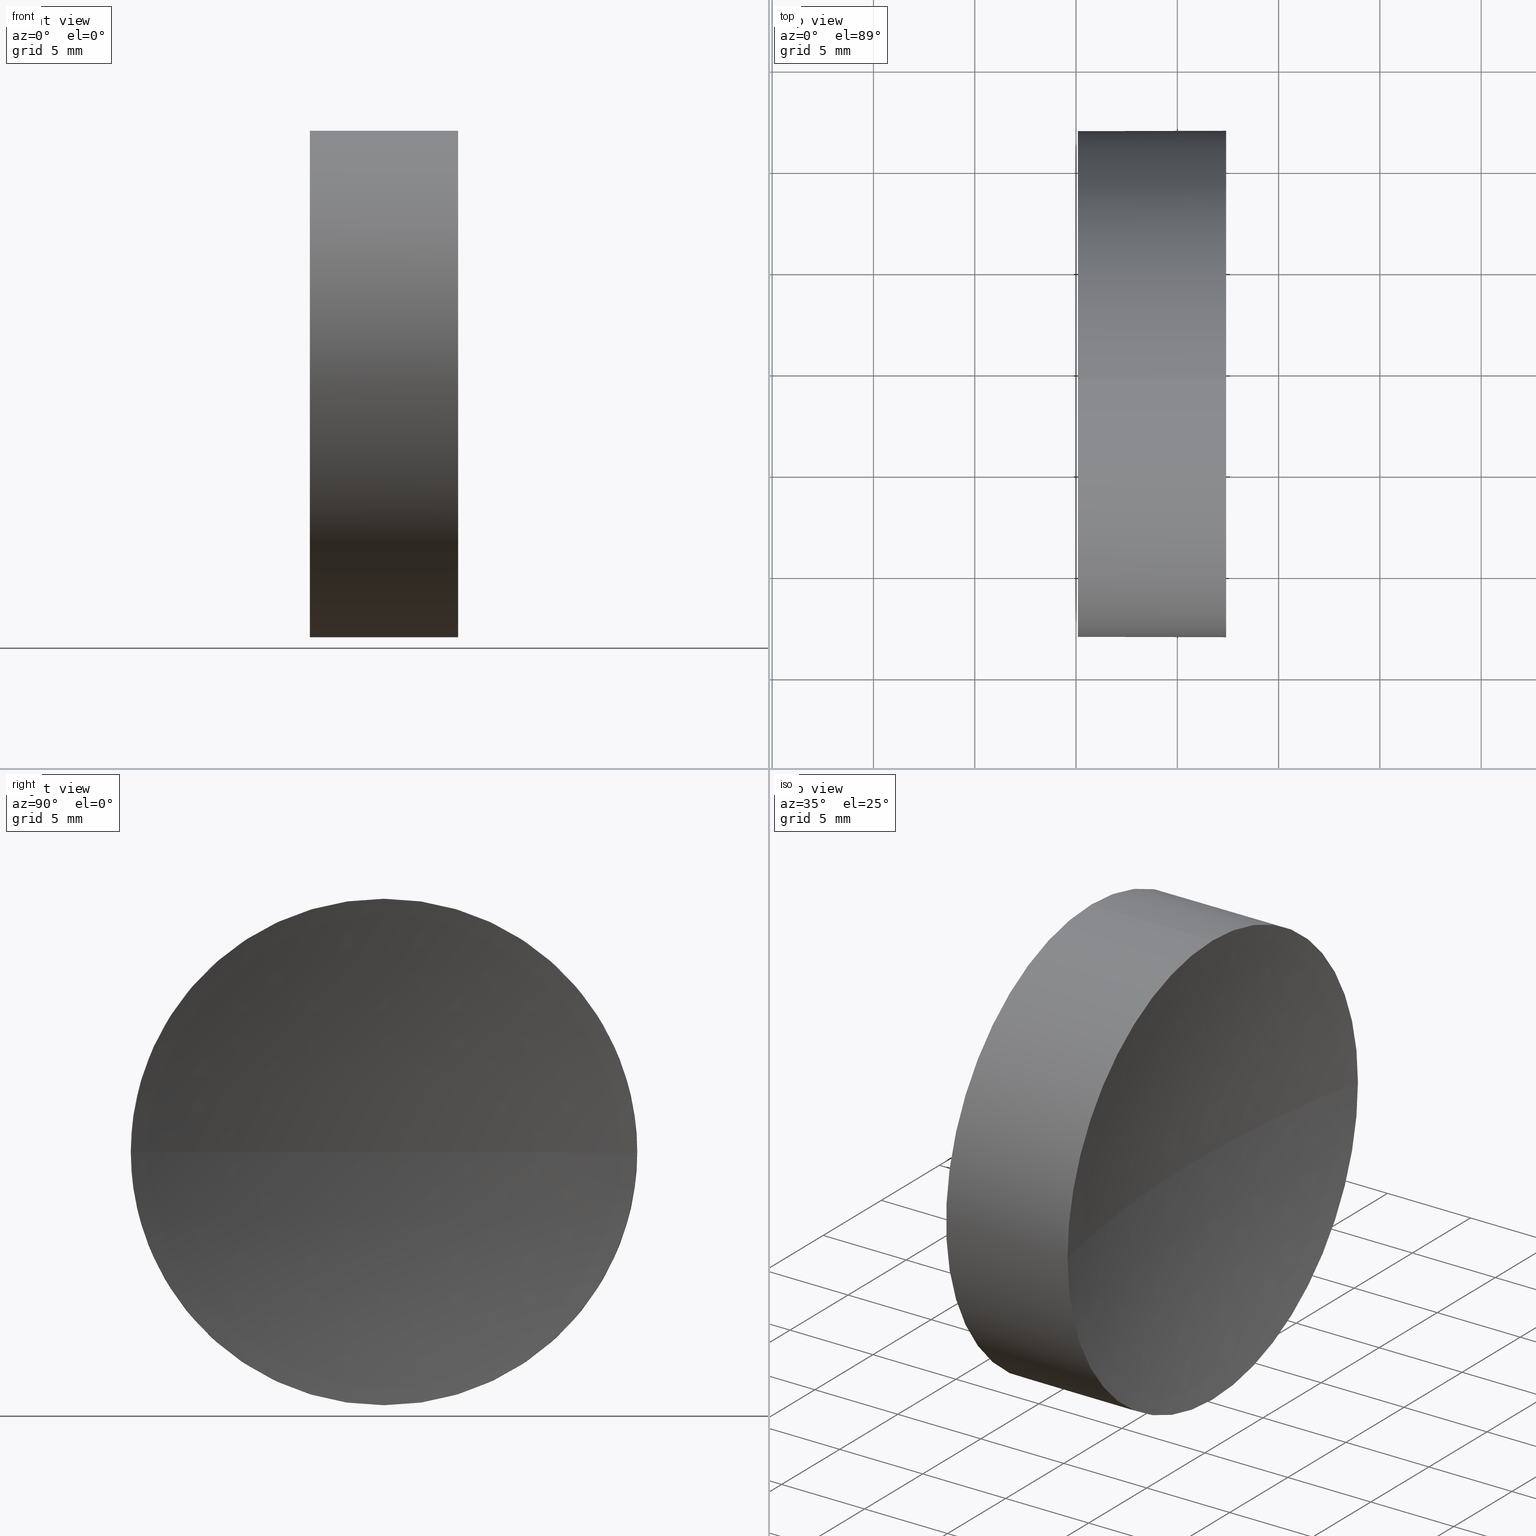
[diagram: canonical four-view strip — front | top / right | iso, engineering-drawing reading convention]
A machine part, canonical four-view strip (front | top / right | iso — engineering-drawing reading convention). The complete STEP part file that produces these views, byte-faithful:
ISO-10303-21;
HEADER;
FILE_DESCRIPTION (( 'STEP AP214' ),
    '1' );
FILE_NAME ('270022.STEP',
    '2019-07-22T06:14:19',
    ( '' ),
    ( '' ),
    'SwSTEP 2.0',
    'SolidWorks 2016',
    '' );
FILE_SCHEMA (( 'AUTOMOTIVE_DESIGN' ));
ENDSEC;

DATA;
#1 = DIRECTION ( 'NONE',  ( 0.0000000000000000000, 0.0000000000000000000, -1.000000000000000000 ) ) ;
#2 = DIRECTION ( 'NONE',  ( 1.000000000000000000, 0.0000000000000000000, 0.0000000000000000000 ) ) ;
#3 = CARTESIAN_POINT ( 'NONE',  ( 115.0926555349195200, 69.37802112337243400, 0.0000000000000000000 ) ) ;
#4 = MANIFOLD_SOLID_BREP ( '��ת1', #36 ) ;
#5 = DIRECTION ( 'NONE',  ( 0.0000000000000000000, 0.0000000000000000000, 1.000000000000000000 ) ) ;
#6 = ORIENTED_EDGE ( 'NONE', *, *, #143, .T. ) ;
#7 = FACE_OUTER_BOUND ( 'NONE', #111, .T. ) ;
#8 = UNCERTAINTY_MEASURE_WITH_UNIT (LENGTH_MEASURE( 1.000000000000000100E-005 ), #61, 'distance_accuracy_value', 'NONE');
#9 = ORIENTED_EDGE ( 'NONE', *, *, #133, .T. ) ;
#10 =( GEOMETRIC_REPRESENTATION_CONTEXT ( 3 ) GLOBAL_UNCERTAINTY_ASSIGNED_CONTEXT ( ( #8 ) ) GLOBAL_UNIT_ASSIGNED_CONTEXT ( ( #61, #78, #92 ) ) REPRESENTATION_CONTEXT ( 'NONE', 'WORKASPACE' ) );
#11 = PRODUCT_DEFINITION_SHAPE ( 'NONE', 'NONE',  #43 ) ;
#12 = ORIENTED_EDGE ( 'NONE', *, *, #133, .F. ) ;
#13 = DIRECTION ( 'NONE',  ( -1.000000000000000000, -0.0000000000000000000, -0.0000000000000000000 ) ) ;
#14 = CARTESIAN_POINT ( 'NONE',  ( 108.9851430021651000, 69.37802112337243400, 0.0000000000000000000 ) ) ;
#15 = APPLICATION_CONTEXT ( 'automotive_design' ) ;
#16 = CARTESIAN_POINT ( 'NONE',  ( 181.0926555496876300, 69.37802112337239200, 0.0000000000000000000 ) ) ;
#17 = ADVANCED_FACE ( 'NONE', ( #103 ), #94, .T. ) ;
#18 = DIRECTION ( 'NONE',  ( -1.000000000000000000, -0.0000000000000000000, -0.0000000000000000000 ) ) ;
#19 = DIRECTION ( 'NONE',  ( -1.000000000000000000, -0.0000000000000000000, -0.0000000000000000000 ) ) ;
#20 = DIRECTION ( 'NONE',  ( 1.000000000000000000, 0.0000000000000000000, 0.0000000000000000000 ) ) ;
#21 = CARTESIAN_POINT ( 'NONE',  ( 108.9851430021651000, 69.37802112337243400, 12.50000000000001800 ) ) ;
#22 = PRODUCT_RELATED_PRODUCT_CATEGORY ( 'part', '', ( #77 ) ) ;
#23 = CIRCLE ( 'NONE', #35, 12.50000000000003900 ) ;
#24 = VERTEX_POINT ( 'NONE', #185 ) ;
#25 = AXIS2_PLACEMENT_3D ( 'NONE', #175, #18, #33 ) ;
#26 = EDGE_CURVE ( 'NONE', #186, #146, #129, .T. ) ;
#27 = LINE ( 'NONE', #21, #181 ) ;
#28 =( NAMED_UNIT ( * ) SI_UNIT ( $, .STERADIAN. ) SOLID_ANGLE_UNIT ( ) );
#29 = EDGE_CURVE ( 'NONE', #179, #39, #60, .T. ) ;
#30 = FILL_AREA_STYLE_COLOUR ( '', #156 ) ;
#31 = VERTEX_POINT ( 'NONE', #58 ) ;
#32 = SHAPE_DEFINITION_REPRESENTATION ( #11, #136 ) ;
#33 = DIRECTION ( 'NONE',  ( 0.0000000000000000000, 0.0000000000000000000, 1.000000000000000000 ) ) ;
#34 = CARTESIAN_POINT ( 'NONE',  ( 122.4091825781601600, 69.37802112337243400, 0.0000000000000000000 ) ) ;
#35 = AXIS2_PLACEMENT_3D ( 'NONE', #63, #108, #165 ) ;
#36 = CLOSED_SHELL ( 'NONE', ( #17, #160, #72, #105, #134 ) ) ;
#37 = APPLICATION_CONTEXT ( 'automotive_design' ) ;
#38 = PRESENTATION_LAYER_ASSIGNMENT (  '', '', ( #117 ) ) ;
#39 = VERTEX_POINT ( 'NONE', #56 ) ;
#40 = STYLED_ITEM ( 'NONE', ( #47 ), #136 ) ;
#41 = SURFACE_STYLE_USAGE ( .BOTH. , #119 ) ;
#42 = DIRECTION ( 'NONE',  ( 0.0000000000000000000, 0.0000000000000000000, 1.000000000000000000 ) ) ;
#43 = PRODUCT_DEFINITION ( 'δ֪', '', #84, #97 ) ;
#44 = DIRECTION ( 'NONE',  ( 0.0000000000000000000, 0.0000000000000000000, 1.000000000000000000 ) ) ;
#45 = DIRECTION ( 'NONE',  ( 0.0000000000000000000, 1.000000000000000000, 0.0000000000000000000 ) ) ;
#46 = FILL_AREA_STYLE ('',( #182 ) ) ;
#47 = PRESENTATION_STYLE_ASSIGNMENT (( #162 ) ) ;
#48 =( LENGTH_UNIT ( ) NAMED_UNIT ( * ) SI_UNIT ( .MILLI., .METRE. ) );
#49 = ORIENTED_EDGE ( 'NONE', *, *, #149, .F. ) ;
#50 = VECTOR ( 'NONE', #67, 1000.000000000000000 ) ;
#51 = ORIENTED_EDGE ( 'NONE', *, *, #70, .T. ) ;
#52 = ORIENTED_EDGE ( 'NONE', *, *, #70, .F. ) ;
#53 = AXIS2_PLACEMENT_3D ( 'NONE', #144, #106, #102 ) ;
#54 = CIRCLE ( 'NONE', #25, 12.50000000000003900 ) ;
#55 = PRESENTATION_STYLE_ASSIGNMENT (( #41 ) ) ;
#56 = CARTESIAN_POINT ( 'NONE',  ( 122.4091825781601700, 81.87802112337246300, 0.0000000000000000000 ) ) ;
#57 = FILL_AREA_STYLE ('',( #30 ) ) ;
#58 = CARTESIAN_POINT ( 'NONE',  ( 121.0926555496876500, 69.37802112337239200, 0.0000000000000000000 ) ) ;
#59 = CARTESIAN_POINT ( 'NONE',  ( 181.0926555496876300, 69.37802112337239200, 0.0000000000000000000 ) ) ;
#60 = CIRCLE ( 'NONE', #176, 12.50000000000003900 ) ;
#61 =( LENGTH_UNIT ( ) NAMED_UNIT ( * ) SI_UNIT ( .MILLI., .METRE. ) );
#62 = CARTESIAN_POINT ( 'NONE',  ( 181.0926555496876300, 69.37802112337239200, 0.0000000000000000000 ) ) ;
#63 = CARTESIAN_POINT ( 'NONE',  ( 122.4091825781601600, 69.37802112337243400, 0.0000000000000000000 ) ) ;
#64 = DIRECTION ( 'NONE',  ( 0.0000000000000000000, 0.0000000000000000000, 1.000000000000000000 ) ) ;
#65 = AXIS2_PLACEMENT_3D ( 'NONE', #180, #150, #148 ) ;
#66 = ORIENTED_EDGE ( 'NONE', *, *, #172, .F. ) ;
#67 = DIRECTION ( 'NONE',  ( -1.000000000000000000, -0.0000000000000000000, -0.0000000000000000000 ) ) ;
#68 =( NAMED_UNIT ( * ) PLANE_ANGLE_UNIT ( ) SI_UNIT ( $, .RADIAN. ) );
#69 = ORIENTED_EDGE ( 'NONE', *, *, #157, .F. ) ;
#70 = EDGE_CURVE ( 'NONE', #39, #31, #183, .T. ) ;
#71 =( NAMED_UNIT ( * ) SI_UNIT ( $, .STERADIAN. ) SOLID_ANGLE_UNIT ( ) );
#72 = ADVANCED_FACE ( 'NONE', ( #7 ), #152, .F. ) ;
#73 = ORIENTED_EDGE ( 'NONE', *, *, #26, .T. ) ;
#74 = EDGE_LOOP ( 'NONE', ( #6, #96, #104, #142, #81 ) ) ;
#75 = SURFACE_SIDE_STYLE ('',( #124 ) ) ;
#76 = CARTESIAN_POINT ( 'NONE',  ( 115.0926555349195200, 69.37802112337243400, 0.0000000000000000000 ) ) ;
#77 = PRODUCT ( '270022', '270022', '', ( #138 ) ) ;
#78 =( NAMED_UNIT ( * ) PLANE_ANGLE_UNIT ( ) SI_UNIT ( $, .RADIAN. ) );
#79 = CARTESIAN_POINT ( 'NONE',  ( 122.4091825781601700, 56.87802112337237000, -1.530808498934194300E-015 ) ) ;
#80 = AXIS2_PLACEMENT_3D ( 'NONE', #62, #139, #2 ) ;
#81 = ORIENTED_EDGE ( 'NONE', *, *, #29, .T. ) ;
#82 = CARTESIAN_POINT ( 'NONE',  ( 115.0926555349195200, 69.37802112337243400, -12.49999999999999600 ) ) ;
#83 = ORIENTED_EDGE ( 'NONE', *, *, #26, .F. ) ;
#84 = PRODUCT_DEFINITION_FORMATION_WITH_SPECIFIED_SOURCE ( '�κ�', '', #77, .NOT_KNOWN. ) ;
#85 = VERTEX_POINT ( 'NONE', #79 ) ;
#86 = FACE_OUTER_BOUND ( 'NONE', #125, .T. ) ;
#87 =( LENGTH_UNIT ( ) NAMED_UNIT ( * ) SI_UNIT ( .MILLI., .METRE. ) );
#88 = CYLINDRICAL_SURFACE ( 'NONE', #127, 12.50000000000001800 ) ;
#89 = DIRECTION ( 'NONE',  ( 0.0000000000000000000, 0.0000000000000000000, 1.000000000000000000 ) ) ;
#90 = APPLICATION_PROTOCOL_DEFINITION ( 'draft international standard', 'automotive_design', 1998, #15 ) ;
#91 = DIRECTION ( 'NONE',  ( 0.0000000000000000000, 1.000000000000000000, 1.224646799147353500E-016 ) ) ;
#92 =( NAMED_UNIT ( * ) SI_UNIT ( $, .STERADIAN. ) SOLID_ANGLE_UNIT ( ) );
#93 = CARTESIAN_POINT ( 'NONE',  ( 108.9851430021651000, 69.37802112337243400, 0.0000000000000000000 ) ) ;
#94 = CYLINDRICAL_SURFACE ( 'NONE', #158, 12.50000000000001800 ) ;
#95 = DIRECTION ( 'NONE',  ( 0.0000000000000000000, 1.224646799147353200E-016, -1.000000000000000000 ) ) ;
#96 = ORIENTED_EDGE ( 'NONE', *, *, #172, .T. ) ;
#97 = PRODUCT_DEFINITION_CONTEXT ( 'detailed design', #37, 'design' ) ;
#98 = SURFACE_STYLE_FILL_AREA ( #57 ) ;
#99 = EDGE_CURVE ( 'NONE', #146, #186, #114, .T. ) ;
#100 = CIRCLE ( 'NONE', #169, 59.99999999999998600 ) ;
#101 = DIRECTION ( 'NONE',  ( 0.0000000000000000000, 0.0000000000000000000, 1.000000000000000000 ) ) ;
#102 = DIRECTION ( 'NONE',  ( 0.0000000000000000000, 0.0000000000000000000, 1.000000000000000000 ) ) ;
#103 = FACE_OUTER_BOUND ( 'NONE', #74, .T. ) ;
#104 = ORIENTED_EDGE ( 'NONE', *, *, #99, .F. ) ;
#105 = ADVANCED_FACE ( 'NONE', ( #140 ), #88, .T. ) ;
#106 = DIRECTION ( 'NONE',  ( -1.000000000000000000, -0.0000000000000000000, -0.0000000000000000000 ) ) ;
#107 = CARTESIAN_POINT ( 'NONE',  ( 0.0000000000000000000, 0.0000000000000000000, 0.0000000000000000000 ) ) ;
#108 = DIRECTION ( 'NONE',  ( -1.000000000000000000, -0.0000000000000000000, -0.0000000000000000000 ) ) ;
#109 = DIRECTION ( 'NONE',  ( -1.000000000000000000, -0.0000000000000000000, -0.0000000000000000000 ) ) ;
#110 = DIRECTION ( 'NONE',  ( 0.0000000000000000000, 0.0000000000000000000, -1.000000000000000000 ) ) ;
#111 = EDGE_LOOP ( 'NONE', ( #12, #49, #161, #51 ) ) ;
#112 = CARTESIAN_POINT ( 'NONE',  ( 122.4091825781601600, 69.37802112337243400, 12.50000000000003700 ) ) ;
#113 = MECHANICAL_DESIGN_GEOMETRIC_PRESENTATION_REPRESENTATION (  '', ( #117 ), #122 ) ;
#114 = CIRCLE ( 'NONE', #135, 12.49999999999999600 ) ;
#115 = EDGE_LOOP ( 'NONE', ( #66, #126, #132, #120, #83 ) ) ;
#116 = APPLICATION_PROTOCOL_DEFINITION ( 'draft international standard', 'automotive_design', 1998, #37 ) ;
#117 = STYLED_ITEM ( 'NONE', ( #55 ), #4 ) ;
#118 = AXIS2_PLACEMENT_3D ( 'NONE', #16, #1, #45 ) ;
#119 = SURFACE_SIDE_STYLE ('',( #98 ) ) ;
#120 = ORIENTED_EDGE ( 'NONE', *, *, #155, .T. ) ;
#121 = FACE_OUTER_BOUND ( 'NONE', #141, .T. ) ;
#122 =( GEOMETRIC_REPRESENTATION_CONTEXT ( 3 ) GLOBAL_UNCERTAINTY_ASSIGNED_CONTEXT ( ( #184 ) ) GLOBAL_UNIT_ASSIGNED_CONTEXT ( ( #87, #145, #28 ) ) REPRESENTATION_CONTEXT ( 'NONE', 'WORKASPACE' ) );
#123 = CARTESIAN_POINT ( 'NONE',  ( 115.0926555349195200, 69.37802112337243400, 12.49999999999999600 ) ) ;
#124 = SURFACE_STYLE_FILL_AREA ( #46 ) ;
#125 = EDGE_LOOP ( 'NONE', ( #69, #9, #52, #137 ) ) ;
#126 = ORIENTED_EDGE ( 'NONE', *, *, #149, .T. ) ;
#127 = AXIS2_PLACEMENT_3D ( 'NONE', #93, #178, #64 ) ;
#128 = CARTESIAN_POINT ( 'NONE',  ( 108.9851430021651000, 69.37802112337243400, -12.50000000000001800 ) ) ;
#129 = CIRCLE ( 'NONE', #53, 12.49999999999999600 ) ;
#130 = UNCERTAINTY_MEASURE_WITH_UNIT (LENGTH_MEASURE( 1.000000000000000100E-005 ), #48, 'distance_accuracy_value', 'NONE');
#131 = COLOUR_RGB ( '',1.000000000000000000, 1.000000000000000000, 1.000000000000000000 ) ;
#132 = ORIENTED_EDGE ( 'NONE', *, *, #157, .T. ) ;
#133 = EDGE_CURVE ( 'NONE', #85, #31, #100, .T. ) ;
#134 = ADVANCED_FACE ( 'NONE', ( #121 ), #163, .F. ) ;
#135 = AXIS2_PLACEMENT_3D ( 'NONE', #76, #109, #89 ) ;
#136 = ADVANCED_BREP_SHAPE_REPRESENTATION ( '270022', ( #4, #171 ), #164 ) ;
#137 = ORIENTED_EDGE ( 'NONE', *, *, #29, .F. ) ;
#138 = PRODUCT_CONTEXT ( 'NONE', #15, 'mechanical' ) ;
#139 = DIRECTION ( 'NONE',  ( 0.0000000000000000000, 0.0000000000000000000, 1.000000000000000000 ) ) ;
#140 = FACE_OUTER_BOUND ( 'NONE', #115, .T. ) ;
#141 = EDGE_LOOP ( 'NONE', ( #154, #73 ) ) ;
#142 = ORIENTED_EDGE ( 'NONE', *, *, #155, .F. ) ;
#143 = EDGE_CURVE ( 'NONE', #39, #24, #170, .T. ) ;
#144 = CARTESIAN_POINT ( 'NONE',  ( 115.0926555349195200, 69.37802112337243400, 0.0000000000000000000 ) ) ;
#145 =( NAMED_UNIT ( * ) PLANE_ANGLE_UNIT ( ) SI_UNIT ( $, .RADIAN. ) );
#146 = VERTEX_POINT ( 'NONE', #123 ) ;
#147 = MECHANICAL_DESIGN_GEOMETRIC_PRESENTATION_REPRESENTATION (  '', ( #40 ), #10 ) ;
#148 = DIRECTION ( 'NONE',  ( 0.0000000000000000000, 1.000000000000000000, 0.0000000000000000000 ) ) ;
#149 = EDGE_CURVE ( 'NONE', #24, #85, #23, .T. ) ;
#150 = DIRECTION ( 'NONE',  ( 0.0000000000000000000, 0.0000000000000000000, -1.000000000000000000 ) ) ;
#151 = PRESENTATION_LAYER_ASSIGNMENT (  '', '', ( #40 ) ) ;
#152 = SPHERICAL_SURFACE ( 'NONE', #65, 60.00000000000000000 ) ;
#153 = AXIS2_PLACEMENT_3D ( 'NONE', #3, #20, #110 ) ;
#154 = ORIENTED_EDGE ( 'NONE', *, *, #99, .T. ) ;
#155 = EDGE_CURVE ( 'NONE', #179, #146, #27, .T. ) ;
#156 = COLOUR_RGB ( '',1.000000000000000000, 1.000000000000000000, 1.000000000000000000 ) ;
#157 = EDGE_CURVE ( 'NONE', #85, #179, #54, .T. ) ;
#158 = AXIS2_PLACEMENT_3D ( 'NONE', #14, #13, #101 ) ;
#159 = CARTESIAN_POINT ( 'NONE',  ( 122.4091825781601600, 69.37802112337243400, 0.0000000000000000000 ) ) ;
#160 = ADVANCED_FACE ( 'NONE', ( #86 ), #168, .F. ) ;
#161 = ORIENTED_EDGE ( 'NONE', *, *, #143, .F. ) ;
#162 = SURFACE_STYLE_USAGE ( .BOTH. , #75 ) ;
#163 = PLANE ( 'NONE',  #153 ) ;
#164 =( GEOMETRIC_REPRESENTATION_CONTEXT ( 3 ) GLOBAL_UNCERTAINTY_ASSIGNED_CONTEXT ( ( #130 ) ) GLOBAL_UNIT_ASSIGNED_CONTEXT ( ( #48, #68, #71 ) ) REPRESENTATION_CONTEXT ( 'NONE', 'WORKASPACE' ) );
#165 = DIRECTION ( 'NONE',  ( 0.0000000000000000000, 0.0000000000000000000, 1.000000000000000000 ) ) ;
#166 = DIRECTION ( 'NONE',  ( -1.000000000000000000, -0.0000000000000000000, -0.0000000000000000000 ) ) ;
#167 = AXIS2_PLACEMENT_3D ( 'NONE', #34, #19, #5 ) ;
#168 = SPHERICAL_SURFACE ( 'NONE', #118, 60.00000000000000000 ) ;
#169 = AXIS2_PLACEMENT_3D ( 'NONE', #59, #95, #91 ) ;
#170 = CIRCLE ( 'NONE', #167, 12.50000000000003900 ) ;
#171 = AXIS2_PLACEMENT_3D ( 'NONE', #107, #44, #177 ) ;
#172 = EDGE_CURVE ( 'NONE', #24, #186, #174, .T. ) ;
#173 = DIRECTION ( 'NONE',  ( -1.000000000000000000, -0.0000000000000000000, -0.0000000000000000000 ) ) ;
#174 = LINE ( 'NONE', #128, #50 ) ;
#175 = CARTESIAN_POINT ( 'NONE',  ( 122.4091825781601600, 69.37802112337243400, 0.0000000000000000000 ) ) ;
#176 = AXIS2_PLACEMENT_3D ( 'NONE', #159, #173, #42 ) ;
#177 = DIRECTION ( 'NONE',  ( 1.000000000000000000, 0.0000000000000000000, 0.0000000000000000000 ) ) ;
#178 = DIRECTION ( 'NONE',  ( -1.000000000000000000, -0.0000000000000000000, -0.0000000000000000000 ) ) ;
#179 = VERTEX_POINT ( 'NONE', #112 ) ;
#180 = CARTESIAN_POINT ( 'NONE',  ( 181.0926555496876300, 69.37802112337239200, 0.0000000000000000000 ) ) ;
#181 = VECTOR ( 'NONE', #166, 1000.000000000000000 ) ;
#182 = FILL_AREA_STYLE_COLOUR ( '', #131 ) ;
#183 = CIRCLE ( 'NONE', #80, 60.00000000000000000 ) ;
#184 = UNCERTAINTY_MEASURE_WITH_UNIT (LENGTH_MEASURE( 1.000000000000000100E-005 ), #87, 'distance_accuracy_value', 'NONE');
#185 = CARTESIAN_POINT ( 'NONE',  ( 122.4091825781601600, 69.37802112337243400, -12.50000000000003700 ) ) ;
#186 = VERTEX_POINT ( 'NONE', #82 ) ;
ENDSEC;
END-ISO-10303-21;
